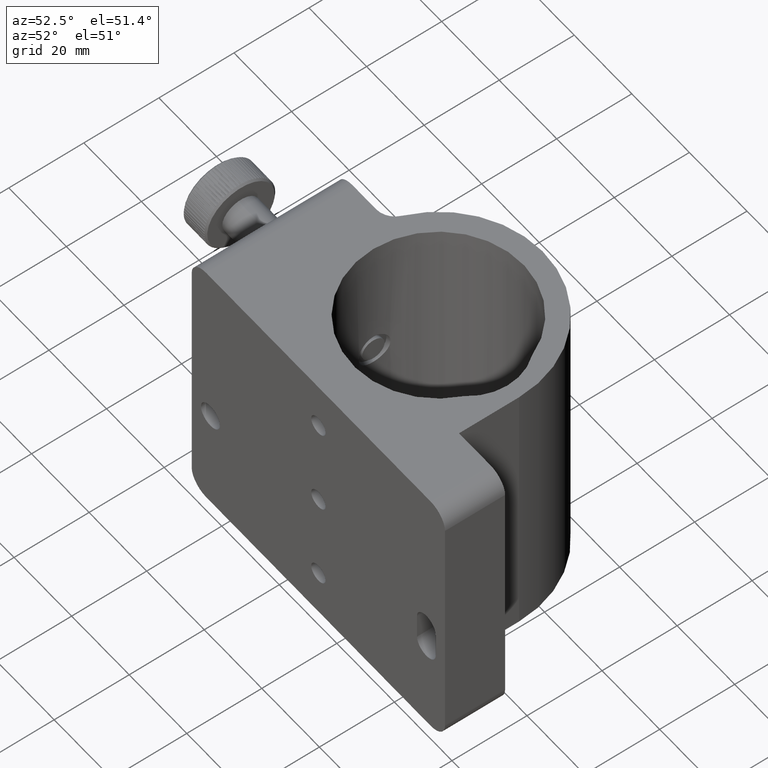
[diagram: clean part render]
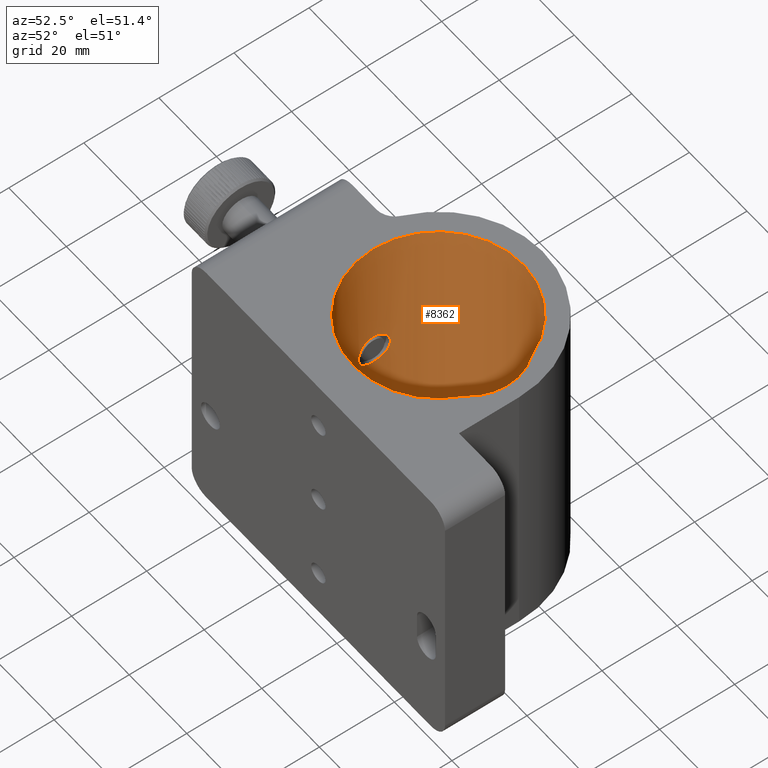
[diagram: same view with one face highlighted and labeled with its STEP entity id]
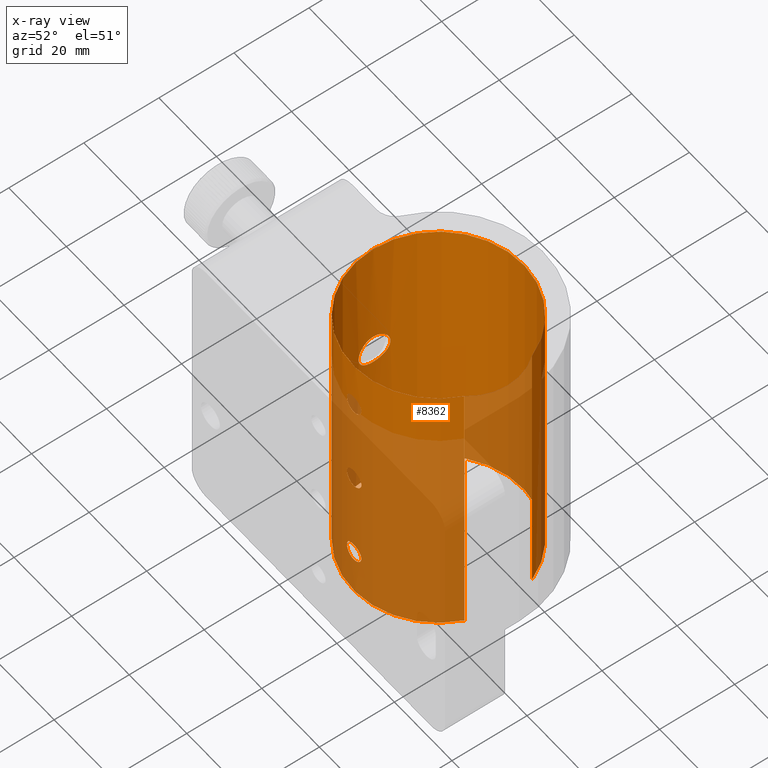
[diagram: x-ray of the same camera — body ghosted, the highlighted face saturated]
A machine part, auxiliary view. The second image highlights one B-rep face of the part: STEP entity #8362.
The next image is the same camera in x-ray: the body ghosted, the highlighted face saturated — about 47% of this face is hidden behind the body in this view.
In plain terms, the highlighted cylindrical surface (partial cylindrical patch) has radius 22.6 mm, axis along (-0, -0, 1).
Its self-contained STEP definition (entity closure, byte-faithful):
#19 = CARTESIAN_POINT ( 'NONE',  ( -50.22097292215434500, 15.63354510714959700, 0.6216507151981876000 ) ) ;
#49 = CARTESIAN_POINT ( 'NONE',  ( -50.36907623515099900, 13.32161828957122700, 8.249999999999989300 ) ) ;
#50 = CARTESIAN_POINT ( 'NONE',  ( -26.24470042069551200, -9.508806134782698600, -26.98820591003821100 ) ) ;
#51 = CARTESIAN_POINT ( 'NONE',  ( -25.78231026818668100, -9.472553143336444500, -1.526362338024773300 ) ) ;
#83 = CARTESIAN_POINT ( 'NONE',  ( -50.36907623515101300, 13.31784632110290000, -0.2499999999999870400 ) ) ;
#86 = CARTESIAN_POINT ( 'NONE',  ( -29.29726443446784900, -9.508552107109819600, -26.98535662105515700 ) ) ;
#106 = CARTESIAN_POINT ( 'NONE',  ( -50.00663148955531100, 9.007418774475031100, 5.370020856989415700 ) ) ;
#136 = CARTESIAN_POINT ( 'NONE',  ( -50.11556625229833600, 16.41927870882249600, 1.407634021790303200 ) ) ;
#147 = FACE_OUTER_BOUND ( 'NONE', #5758, .T. ) ;
#162 = CARTESIAN_POINT ( 'NONE',  ( -27.76907623515101200, -9.559863788454801900, 2.499999999999996900 ) ) ;
#259 = CIRCLE ( 'NONE', #7821, 22.59999999999999800 ) ;
#275 = CARTESIAN_POINT ( 'NONE',  ( -27.11942522369375700, -9.551093621070721800, -22.58035598820120500 ) ) ;
#402 = ORIENTED_EDGE ( 'NONE', *, *, #3275, .T. ) ;
#426 = CARTESIAN_POINT ( 'NONE',  ( -27.76907623515101200, -9.559863788454798300, 22.50000000000000400 ) ) ;
#435 = CARTESIAN_POINT ( 'NONE',  ( -27.76907623515101200, -9.559863788454801900, 2.499999999999996900 ) ) ;
#452 = DIRECTION ( 'NONE',  ( 1.000000000000000000, 0.0000000000000000000, 0.0000000000000000000 ) ) ;
#471 = EDGE_CURVE ( 'NONE', #9157, #6496, #3083, .T. ) ;
#543 = CARTESIAN_POINT ( 'NONE',  ( -29.42034124769478600, -9.499755083912825500, 26.88411141106677200 ) ) ;
#574 = CARTESIAN_POINT ( 'NONE',  ( -50.06692739729871300, 9.353658175052336400, 1.867155379651584300 ) ) ;
#576 = VERTEX_POINT ( 'NONE', #8124 ) ;
#580 = CARTESIAN_POINT ( 'NONE',  ( -25.88440260562517600, -9.481446782610587900, 26.65082874251415700 ) ) ;
#591 = CARTESIAN_POINT ( 'NONE',  ( -29.02425792087840500, -9.525395534908176000, -2.168298646661327200 ) ) ;
#599 = CARTESIAN_POINT ( 'NONE',  ( -28.41721776518688700, -9.551144305440896400, 27.42011759935069300 ) ) ;
#627 = CARTESIAN_POINT ( 'NONE',  ( -29.93977446078792700, -9.455559936797396100, -1.250894685357568000 ) ) ;
#650 = CARTESIAN_POINT ( 'NONE',  ( -25.59955585363810100, -9.455676783567669800, 23.74692286405495500 ) ) ;
#671 = CARTESIAN_POINT ( 'NONE',  ( -26.11773873856712700, -9.499756861068375400, 1.884227878818551100 ) ) ;
#675 = CARTESIAN_POINT ( 'NONE',  ( -25.78103928754392300, -9.472437282327742700, 26.52454010670438600 ) ) ;
#695 = CARTESIAN_POINT ( 'NONE',  ( -50.14233858672911700, 9.840725430841791500, 1.188773494535326300 ) ) ;
#732 = CARTESIAN_POINT ( 'NONE',  ( -50.36907623515101300, 13.04013621154531000, -0.2499999999999861200 ) ) ;
#737 = CARTESIAN_POINT ( 'NONE',  ( -30.18974714003132200, -9.429874182894032200, -25.64568218764448600 ) ) ;
#749 = ORIENTED_EDGE ( 'NONE', *, *, #5913, .T. ) ;
#766 = CARTESIAN_POINT ( 'NONE',  ( -50.19451975645319000, 15.85054537855318900, 7.200092809467613500 ) ) ;
#767 = CARTESIAN_POINT ( 'NONE',  ( -26.11616881162265400, -9.499634240705788100, -26.88267205442438600 ) ) ;
#768 = CARTESIAN_POINT ( 'NONE',  ( -25.88574964340851600, -9.481551912122558400, -1.652161603506530500 ) ) ;
#769 = CARTESIAN_POINT ( 'NONE',  ( -30.26895220466359500, -9.421177644782382300, -24.83290917703401100 ) ) ;
#787 = CARTESIAN_POINT ( 'NONE',  ( -50.29164099981525700, 14.92708686129491200, 7.818309000118829600 ) ) ;
#790 = CARTESIAN_POINT ( 'NONE',  ( -28.87897424218244400, -9.533094851773857000, -27.24602396402951500 ) ) ;
#812 = CARTESIAN_POINT ( 'NONE',  ( -49.97112828536926800, 17.26292899523515300, 4.555740068275376600 ) ) ;
#819 = AXIS2_PLACEMENT_3D ( 'NONE', #5537, #7575, #452 ) ;
#850 = CARTESIAN_POINT ( 'NONE',  ( -50.14204275175760700, 16.24158682961148900, 6.808862334699219900 ) ) ;
#851 = CARTESIAN_POINT ( 'NONE',  ( -27.11942522369375700, -9.551093621070721800, 2.419644011798799200 ) ) ;
#852 = CARTESIAN_POINT ( 'NONE',  ( -30.25261264772181500, -9.423013079876243500, -24.67046143328015600 ) ) ;
#857 = ORIENTED_EDGE ( 'NONE', *, *, #8978, .T. ) ;
#902 = CARTESIAN_POINT ( 'NONE',  ( -26.66080214093184600, -9.533181804716015500, -22.75309574417100900 ) ) ;
#903 = CARTESIAN_POINT ( 'NONE',  ( -27.44004794668180800, -9.558037435281885800, 2.483639258408565800 ) ) ;
#929 = CARTESIAN_POINT ( 'NONE',  ( -25.26901683641301600, -9.421157228645944000, -24.83771472553120000 ) ) ;
#982 = CARTESIAN_POINT ( 'NONE',  ( -29.02126465178828600, -9.525562586994331200, 2.170028545115327800 ) ) ;
#1242 = LINE ( 'NONE', #8828, #4330 ) ;
#1265 = CARTESIAN_POINT ( 'NONE',  ( -29.65094069846107400, -9.481674592527513200, 1.653825290861745500 ) ) ;
#1289 = CARTESIAN_POINT ( 'NONE',  ( -25.78231026818668100, -9.472553143336444500, 23.47363766197522500 ) ) ;
#1300 = CARTESIAN_POINT ( 'NONE',  ( -29.29726443446784900, -9.508552107109821300, -1.985356621055161400 ) ) ;
#1330 = CARTESIAN_POINT ( 'NONE',  ( -30.01490113510993400, -9.448088751833379800, 1.110451582658048800 ) ) ;
#1336 = CARTESIAN_POINT ( 'NONE',  ( -30.18882895895051600, -9.429973400045874100, 25.64911134267219600 ) ) ;
#1343 = CARTESIAN_POINT ( 'NONE',  ( -25.52181815613814200, -9.447945097838248400, 1.107559375173965900 ) ) ;
#1350 = CARTESIAN_POINT ( 'NONE',  ( -26.11616881162265400, -9.499634240705788100, 23.11732794557562100 ) ) ;
#1355 = CARTESIAN_POINT ( 'NONE',  ( -50.36907623515101300, 13.04013621154531000, -0.2499999999999861200 ) ) ;
#1366 = FACE_BOUND ( 'NONE', #2649, .T. ) ;
#1380 = CARTESIAN_POINT ( 'NONE',  ( -26.66080214093184600, -9.533181804716015500, 27.24690425582899800 ) ) ;
#1414 = CARTESIAN_POINT ( 'NONE',  ( -25.39646459288247700, -9.435065319166415800, 0.8047177382139443200 ) ) ;
#1468 = CARTESIAN_POINT ( 'NONE',  ( -50.32853071867609200, 11.66294879919170500, 8.030192045510299100 ) ) ;
#1470 = CARTESIAN_POINT ( 'NONE',  ( -25.59955585363810100, -9.455676783567673400, -1.253077135945048800 ) ) ;
#1505 = CARTESIAN_POINT ( 'NONE',  ( -50.26959574886973300, 15.17097311216968200, 7.687693063780742800 ) ) ;
#1506 = CARTESIAN_POINT ( 'NONE',  ( -26.65993693079253600, -9.533139164316816400, -27.24647746854360300 ) ) ;
#1538 = CARTESIAN_POINT ( 'NONE',  ( -49.96589571976228000, 8.790288591752572600, 3.717037351233735400 ) ) ;
#1539 = CARTESIAN_POINT ( 'NONE',  ( -27.44123041101581300, -9.558051411166374600, -27.48376386526176800 ) ) ;
#1541 = CARTESIAN_POINT ( 'NONE',  ( -29.29452156692128300, -9.508738586035043700, -23.01253521863752400 ) ) ;
#1627 = CARTESIAN_POINT ( 'NONE',  ( -25.39646459288248100, -9.435065319166415800, -24.19528226178605800 ) ) ;
#1654 = CARTESIAN_POINT ( 'NONE',  ( -27.76907623515101200, -9.559863788454798300, -22.50000000000000400 ) ) ;
#1666 = VERTEX_POINT ( 'NONE', #5889 ) ;
#1694 = DIRECTION ( 'NONE',  ( -0.0000000000000000000, -0.0000000000000000000, 1.000000000000000000 ) ) ;
#1706 = CARTESIAN_POINT ( 'NONE',  ( -27.60585124674958400, -9.559863788454800100, -22.50000000000000400 ) ) ;
#1895 = VERTEX_POINT ( 'NONE', #5932 ) ;
#1935 = CARTESIAN_POINT ( 'NONE',  ( -29.02126465178828600, -9.525562586994334800, 27.17002854511533300 ) ) ;
#1940 = VERTEX_POINT ( 'NONE', #7384 ) ;
#1950 = EDGE_LOOP ( 'NONE', ( #4803, #402 ) ) ;
#1976 = CARTESIAN_POINT ( 'NONE',  ( -28.09963190036503300, -9.559863788454801900, 22.50000000000000700 ) ) ;
#2019 = CARTESIAN_POINT ( 'NONE',  ( -26.51638142674551100, -9.525529705478172500, 22.83033641285069100 ) ) ;
#2030 = CARTESIAN_POINT ( 'NONE',  ( -30.18882895895050600, -9.429973400045870600, 0.6491113426721856200 ) ) ;
#2061 = CARTESIAN_POINT ( 'NONE',  ( -28.87897424218245100, -9.533094851773857000, -2.246023964029513200 ) ) ;
#2070 = CARTESIAN_POINT ( 'NONE',  ( -30.01645871992888100, -9.447932593057917200, 23.89269700043630700 ) ) ;
#2079 = CARTESIAN_POINT ( 'NONE',  ( -50.36907623515101300, 13.04013621154531000, -0.2499999999999861200 ) ) ;
#2111 = DIRECTION ( 'NONE',  ( 0.0000000000000000000, 0.0000000000000000000, 1.000000000000000000 ) ) ;
#2118 = CARTESIAN_POINT ( 'NONE',  ( -50.36396140664233900, 12.48610530191366600, -0.2230591364581968300 ) ) ;
#2125 = CARTESIAN_POINT ( 'NONE',  ( -27.11942522369375700, -9.551093621070721800, 27.41964401179880200 ) ) ;
#2145 = CARTESIAN_POINT ( 'NONE',  ( -50.00684368748702000, 17.07167393183401000, 5.373236867230891900 ) ) ;
#2156 = VERTEX_POINT ( 'NONE', #3532 ) ;
#2181 = CARTESIAN_POINT ( 'NONE',  ( -30.01645871992888100, -9.447932593057917200, -26.10730299956370700 ) ) ;
#2207 = CARTESIAN_POINT ( 'NONE',  ( -49.97122065302290400, 17.26243990114780400, 3.441405973830545600 ) ) ;
#2209 = CARTESIAN_POINT ( 'NONE',  ( -25.26913596693003300, -9.421170488175523200, -0.1641102155710664500 ) ) ;
#2226 = ORIENTED_EDGE ( 'NONE', *, *, #3314, .T. ) ;
#2236 = CARTESIAN_POINT ( 'NONE',  ( -50.22043103417064500, 10.44178196834628000, 7.374840960200384800 ) ) ;
#2241 = CARTESIAN_POINT ( 'NONE',  ( -28.42804102355759400, -9.552258577490762900, -27.43346549999564100 ) ) ;
#2260 = CARTESIAN_POINT ( 'NONE',  ( -50.34382352215095600, 14.14235764440779900, 8.113945907594397200 ) ) ;
#2261 = CARTESIAN_POINT ( 'NONE',  ( -26.96265772582733400, -9.545979886154983200, -27.37203292577634200 ) ) ;
#2347 = CARTESIAN_POINT ( 'NONE',  ( -26.24391761360255200, -9.508750143754179300, 1.987560994004821300 ) ) ;
#2488 = VERTEX_POINT ( 'NONE', #6046 ) ;
#2649 = EDGE_LOOP ( 'NONE', ( #8397, #7564 ) ) ;
#2652 = CARTESIAN_POINT ( 'NONE',  ( -29.42293614079403600, -9.499563976570675200, 23.11816708704219900 ) ) ;
#2667 = CARTESIAN_POINT ( 'NONE',  ( -29.65320071307530400, -9.481484780500000700, -1.651248815736536800 ) ) ;
#2676 = EDGE_CURVE ( 'NONE', #1940, #1666, #5035, .T. ) ;
#2685 = CARTESIAN_POINT ( 'NONE',  ( -25.88574964340851600, -9.481551912122558400, 23.34783839649346900 ) ) ;
#2702 = CARTESIAN_POINT ( 'NONE',  ( -30.14059651580489400, -9.435180984063999100, 25.80791321139750800 ) ) ;
#2709 = CARTESIAN_POINT ( 'NONE',  ( -50.22092805190001000, 10.44619979519260200, 0.6219071235128378300 ) ) ;
#2730 = CARTESIAN_POINT ( 'NONE',  ( -30.25308141704901700, -9.422960926032368800, -0.3259929040322008300 ) ) ;
#2771 = CARTESIAN_POINT ( 'NONE',  ( -29.65094069846108500, -9.481674592527513200, 26.65382529086175400 ) ) ;
#2805 = CARTESIAN_POINT ( 'NONE',  ( -50.32888395147470800, 11.66869567097353600, -0.03216109776204256100 ) ) ;
#2837 = CARTESIAN_POINT ( 'NONE',  ( -49.96584598488013300, 17.29024358542804100, 3.723754555508199400 ) ) ;
#2872 = EDGE_LOOP ( 'NONE', ( #857, #4492 ) ) ;
#2874 = CARTESIAN_POINT ( 'NONE',  ( -50.14188132446391700, 16.24284847436496200, 1.192284453611577300 ) ) ;
#2876 = CARTESIAN_POINT ( 'NONE',  ( -26.65993693079253600, -9.533139164316816400, -2.246477468543602200 ) ) ;
#2877 = CARTESIAN_POINT ( 'NONE',  ( -30.18882895895051600, -9.429973400045874100, -24.35088865732781800 ) ) ;
#2893 = CARTESIAN_POINT ( 'NONE',  ( -49.99167980119049300, 8.926871788946082000, 2.895307847369955800 ) ) ;
#2925 = CARTESIAN_POINT ( 'NONE',  ( -49.97129993432653800, 8.818250818105513000, 3.438775724898977000 ) ) ;
#2928 = CARTESIAN_POINT ( 'NONE',  ( -30.01490113510993400, -9.448088751833379800, -23.88954841734196000 ) ) ;
#2958 = CARTESIAN_POINT ( 'NONE',  ( -50.11529547124418100, 9.659175434833342100, 6.590154979590638900 ) ) ;
#2959 = CARTESIAN_POINT ( 'NONE',  ( -25.39728554717419600, -9.435151042766838400, -25.80691899925062700 ) ) ;
#2984 = CARTESIAN_POINT ( 'NONE',  ( -28.09963190036503300, -9.559863788454801900, -27.49999999999999600 ) ) ;
#3005 = CARTESIAN_POINT ( 'NONE',  ( -26.51638142674551100, -9.525529705478172500, -27.16966358714931200 ) ) ;
#3083 = B_SPLINE_CURVE_WITH_KNOTS ( 'NONE', 3,
 ( #7452, #8859, #5487, #3795, #4503, #5225, #982, #6986, #8329, #1265, #6231, #3442, #1330, #4132, #2030, #7712, #7618, #4857, #2730, #9111, #6305, #8398, #627, #5520, #2667, #5569, #1300, #591, #2061, #7013, #5545, #8361 ),
 .UNSPECIFIED., .F., .F.,
 ( 4, 2, 2, 2, 2, 2, 2, 2, 2, 2, 2, 2, 2, 2, 2, 4 ),
 ( 0.007822122090091528800, 0.008310889103474607500, 0.008799656116857684400, 0.009288423130240763100, 0.009777190143623841800, 0.01026595715700692100, 0.01075472417038999700, 0.01124349118377307400, 0.01173225819715615300, 0.01222102521053923200, 0.01270979222392230900, 0.01319855923730538900, 0.01368732625068846600, 0.01417609326407154300, 0.01466486027745462200, 0.01564239430422076700 ),
 .UNSPECIFIED. ) ;
#3127 = B_SPLINE_CURVE_WITH_KNOTS ( 'NONE', 3,
 ( #3550, #4120, #4331, #4277, #7874, #5022, #5773, #1541, #8655, #3691, #6412, #5083, #2928, #6494, #2877, #852, #769, #3581, #4391, #737, #6468, #2181, #7157, #6442, #8543, #3609, #86, #5686, #790, #2241, #2984, #7189 ),
 .UNSPECIFIED., .F., .F.,
 ( 4, 2, 2, 2, 2, 2, 2, 2, 2, 2, 2, 2, 2, 2, 2, 4 ),
 ( 0.007822122090091528800, 0.008310889103474605700, 0.008799656116857682700, 0.009288423130240761400, 0.009777190143623838400, 0.01026595715700691500, 0.01075472417038999200, 0.01124349118377306900, 0.01173225819715614800, 0.01222102521053922500, 0.01270979222392230200, 0.01319855923730537900, 0.01368732625068845600, 0.01417609326407153300, 0.01466486027745461000, 0.01564239430422077100 ),
 .UNSPECIFIED. ) ;
#3154 = CARTESIAN_POINT ( 'NONE',  ( -25.60008197307929100, -9.455723854546551600, -23.74621479786164000 ) ) ;
#3275 = EDGE_CURVE ( 'NONE', #2488, #4095, #6715, .T. ) ;
#3314 = EDGE_CURVE ( 'NONE', #6599, #1895, #259, .T. ) ;
#3351 = CARTESIAN_POINT ( 'NONE',  ( -28.87897424218244400, -9.533094851773857000, 22.75397603597049200 ) ) ;
#3388 = CARTESIAN_POINT ( 'NONE',  ( -30.26895220466359500, -9.421177644782382300, 25.16709082296600600 ) ) ;
#3395 = CARTESIAN_POINT ( 'NONE',  ( -50.11564600530250100, 9.661511303304148900, 1.406924563861152300 ) ) ;
#3405 = CARTESIAN_POINT ( 'NONE',  ( -25.39728554717419600, -9.435151042766838400, 24.19308100074937700 ) ) ;
#3422 = CARTESIAN_POINT ( 'NONE',  ( -30.25308141704901400, -9.422960926032363500, 24.67400709596780600 ) ) ;
#3430 = CARTESIAN_POINT ( 'NONE',  ( -25.28530675225657700, -9.422987391640825500, 25.32806833592375600 ) ) ;
#3442 = CARTESIAN_POINT ( 'NONE',  ( -29.93803589779811200, -9.455728318332166500, 1.253902910496153200 ) ) ;
#3449 = CARTESIAN_POINT ( 'NONE',  ( -30.01490113510993400, -9.448088751833379800, 26.11045158265805100 ) ) ;
#3472 = VECTOR ( 'NONE', #7464, 1000.000000000000000 ) ;
#3490 = CARTESIAN_POINT ( 'NONE',  ( -25.26901683641301600, -9.421157228645944000, 25.16228527446880400 ) ) ;
#3521 = CARTESIAN_POINT ( 'NONE',  ( -50.29195239233683200, 11.15710064048119900, 0.1798757464269998000 ) ) ;
#3529 = CARTESIAN_POINT ( 'NONE',  ( -25.60008197307929100, -9.455723854546551600, 26.25378520213836700 ) ) ;
#3532 = CARTESIAN_POINT ( 'NONE',  ( -27.76907623515101200, -9.559863788454798300, -27.50000000000000000 ) ) ;
#3547 = CARTESIAN_POINT ( 'NONE',  ( -50.04425902054154600, 16.85955885279504300, 2.115243467221231500 ) ) ;
#3550 = CARTESIAN_POINT ( 'NONE',  ( -27.76907623515101200, -9.559863788454798300, -22.50000000000000400 ) ) ;
#3577 = CARTESIAN_POINT ( 'NONE',  ( -50.36907623515100600, 13.04013621154531700, 8.249999999999992900 ) ) ;
#3579 = CARTESIAN_POINT ( 'NONE',  ( -26.24470042069551600, -9.508806134782698600, -1.988205910038204800 ) ) ;
#3581 = CARTESIAN_POINT ( 'NONE',  ( -30.26919887262421900, -9.421150190016796000, -25.16335851266422500 ) ) ;
#3605 = CARTESIAN_POINT ( 'NONE',  ( -50.04417281246838900, 9.220221802671900900, 5.883619118802419800 ) ) ;
#3607 = CARTESIAN_POINT ( 'NONE',  ( -26.51638142674550700, -9.525529705478172500, -2.169663587149308600 ) ) ;
#3609 = CARTESIAN_POINT ( 'NONE',  ( -29.42293614079403600, -9.499563976570675200, -26.88183291295780100 ) ) ;
#3638 = CARTESIAN_POINT ( 'NONE',  ( -50.06641584878335000, 9.350548690487295600, 6.127614278109627200 ) ) ;
#3655 = B_SPLINE_CURVE_WITH_KNOTS ( 'NONE', 3,
 ( #3656, #49, #6491, #2260, #5802, #787, #1505, #7213, #766, #850, #4327, #6409, #8630, #2145, #5713, #812, #7103, #2837, #2207, #4354, #7851, #3547, #5052, #136, #2874, #7784, #19, #4991, #7186, #8596, #4298, #4961, #83, #732 ),
 .UNSPECIFIED., .F., .F.,
 ( 4, 2, 2, 2, 2, 2, 2, 2, 2, 2, 2, 2, 2, 2, 2, 2, 4 ),
 ( 7.152448122690996000E-018, 0.0008323199777097470200, 0.001664639955419486900, 0.002496959933129226600, 0.003329279910838971200, 0.004161599888548714800, 0.004993919866258459400, 0.005826239843968203900, 0.006658559821677948400, 0.007490879799387693000, 0.008323199777097436600, 0.009155519754807181200, 0.009987839732516925700, 0.01082015971022667000, 0.01165247968793641100, 0.01248479966564615100, 0.01331711964335589000 ),
 .UNSPECIFIED. ) ;
#3656 = CARTESIAN_POINT ( 'NONE',  ( -50.36907623515100600, 13.04013621154531700, 8.249999999999992900 ) ) ;
#3657 = CARTESIAN_POINT ( 'NONE',  ( -25.28502087010477000, -9.422956014323567300, -25.32642034115640700 ) ) ;
#3691 = CARTESIAN_POINT ( 'NONE',  ( -29.65094069846108500, -9.481674592527513200, -23.34617470913826800 ) ) ;
#3727 = CARTESIAN_POINT ( 'NONE',  ( -26.66080214093184600, -9.533181804716015500, 2.246904255828990700 ) ) ;
#3795 = CARTESIAN_POINT ( 'NONE',  ( -28.41721776518689400, -9.551144305440900000, 2.420117599350692500 ) ) ;
#3934 = CARTESIAN_POINT ( 'NONE',  ( -27.76907623515101200, -9.559863788454798300, -22.50000000000000400 ) ) ;
#3961 = CARTESIAN_POINT ( 'NONE',  ( -27.76907623515101200, 13.04013621154520000, -38.00000000000001400 ) ) ;
#4016 = CARTESIAN_POINT ( 'NONE',  ( -27.93226262200940700, -9.559863788454801900, 27.49999999999999600 ) ) ;
#4082 = CARTESIAN_POINT ( 'NONE',  ( -30.14176078325047900, -9.435057550214899900, 24.19550264081279800 ) ) ;
#4090 = CARTESIAN_POINT ( 'NONE',  ( -50.34376176965449200, 11.93589023352011600, -0.1136139268124684000 ) ) ;
#4095 = VERTEX_POINT ( 'NONE', #6655 ) ;
#4096 = CARTESIAN_POINT ( 'NONE',  ( -25.26913596693003300, -9.421170488175523200, 24.83588978442894300 ) ) ;
#4120 = CARTESIAN_POINT ( 'NONE',  ( -27.93226262200940700, -9.559863788454801900, -22.50000000000000400 ) ) ;
#4132 = CARTESIAN_POINT ( 'NONE',  ( -30.14059651580488000, -9.435180984063997300, 0.8079132113975043800 ) ) ;
#4175 = CARTESIAN_POINT ( 'NONE',  ( -27.76907623515101200, 13.04013621154520000, 38.00000000000000000 ) ) ;
#4181 = CARTESIAN_POINT ( 'NONE',  ( -25.60008197307929500, -9.455723854546551600, 1.253785202138362600 ) ) ;
#4186 = CARTESIAN_POINT ( 'NONE',  ( -25.39646459288248100, -9.435065319166415800, 25.80471773821394500 ) ) ;
#4203 = CARTESIAN_POINT ( 'NONE',  ( -50.26958183268929000, 10.90907919952430300, 0.3123701886211319700 ) ) ;
#4234 = CARTESIAN_POINT ( 'NONE',  ( -50.34357293910440500, 11.93222952089730500, 8.112579457969653500 ) ) ;
#4274 = CARTESIAN_POINT ( 'NONE',  ( -49.97113082668436600, 8.817365720185947000, 4.554733450173970700 ) ) ;
#4277 = CARTESIAN_POINT ( 'NONE',  ( -28.41721776518688700, -9.551144305440896400, -22.57988240064930400 ) ) ;
#4298 = CARTESIAN_POINT ( 'NONE',  ( -50.34365682664406400, 14.14601294647233800, -0.1130359409598165100 ) ) ;
#4300 = CARTESIAN_POINT ( 'NONE',  ( -25.39728554717419600, -9.435151042766838400, -0.8069189992506230500 ) ) ;
#4327 = CARTESIAN_POINT ( 'NONE',  ( -50.11588020099895900, 16.41727813205977100, 6.595277813126819500 ) ) ;
#4330 = VECTOR ( 'NONE', #1694, 1000.000000000000000 ) ;
#4331 = CARTESIAN_POINT ( 'NONE',  ( -28.09453676405790300, -9.558096424752633900, -22.51582366129780200 ) ) ;
#4354 = CARTESIAN_POINT ( 'NONE',  ( -49.99164118566712700, 17.15361068203415900, 2.895824509446301800 ) ) ;
#4391 = CARTESIAN_POINT ( 'NONE',  ( -30.25308141704901400, -9.422960926032363500, -25.32599290403220500 ) ) ;
#4413 = CARTESIAN_POINT ( 'NONE',  ( -27.60585124674958400, -9.559863788454800100, 2.499999999999996900 ) ) ;
#4442 = CARTESIAN_POINT ( 'NONE',  ( -26.51458462014150200, -9.525426832016572500, -22.83141559683653600 ) ) ;
#4448 = ORIENTED_EDGE ( 'NONE', *, *, #8771, .F. ) ;
#4492 = ORIENTED_EDGE ( 'NONE', *, *, #8969, .T. ) ;
#4503 = CARTESIAN_POINT ( 'NONE',  ( -28.57498735658396100, -9.545991807427585100, 2.372133581297432700 ) ) ;
#4509 = CARTESIAN_POINT ( 'NONE',  ( -25.34920354077123900, -9.429960561703600400, -24.35118891795171000 ) ) ;
#4721 = B_SPLINE_CURVE_WITH_KNOTS ( 'NONE', 3,
 ( #2079, #4806, #2118, #4090, #2805, #3521, #4203, #2709, #4925, #695, #3395, #574, #5769, #6437, #2893, #2925, #1538, #8538, #4274, #6465, #106, #3605, #3638, #2958, #7815, #5080, #2236, #8511, #7126, #1468, #4234, #7153, #8568, #3577 ),
 .UNSPECIFIED., .F., .F.,
 ( 4, 2, 2, 2, 2, 2, 2, 2, 2, 2, 2, 2, 2, 2, 2, 2, 4 ),
 ( 0.01331711964335589000, 0.01414922724470195500, 0.01498133484604802100, 0.01581344244739408400, 0.01664555004874015300, 0.01747765765008621500, 0.01830976525143228300, 0.01914187285277834500, 0.01997398045412441400, 0.02080608805547047900, 0.02163819565681654500, 0.02247030325816261300, 0.02330241085950868200, 0.02413451846085474400, 0.02496662606220081300, 0.02579873366354688100, 0.02663084126489294700 ),
 .UNSPECIFIED. ) ;
#4730 = CARTESIAN_POINT ( 'NONE',  ( -29.75652312106392100, -9.472490508596989000, 26.52535681163984500 ) ) ;
#4803 = ORIENTED_EDGE ( 'NONE', *, *, #5385, .T. ) ;
#4806 = CARTESIAN_POINT ( 'NONE',  ( -50.36907623515102700, 12.76249696303252400, -0.2499999999999870400 ) ) ;
#4813 = CARTESIAN_POINT ( 'NONE',  ( -27.44123041101581300, -9.558051411166374600, 22.51623613473824300 ) ) ;
#4848 = CARTESIAN_POINT ( 'NONE',  ( -27.44004794668180800, -9.558037435281887500, 27.48363925840856600 ) ) ;
#4857 = CARTESIAN_POINT ( 'NONE',  ( -30.26919887262423400, -9.421150190016796000, -0.1633585126642236000 ) ) ;
#4873 = CARTESIAN_POINT ( 'NONE',  ( -25.34920354077123900, -9.429960561703600400, 25.64881108204829000 ) ) ;
#4892 = CARTESIAN_POINT ( 'NONE',  ( -25.26901683641301600, -9.421157228645944000, 0.1622852744688070300 ) ) ;
#4925 = CARTESIAN_POINT ( 'NONE',  ( -50.19489365544482200, 10.23267995580954800, 0.7972803461996327300 ) ) ;
#4928 = CARTESIAN_POINT ( 'NONE',  ( -25.78103928754392300, -9.472437282327742700, 1.524540106704388700 ) ) ;
#4955 = B_SPLINE_CURVE_WITH_KNOTS ( 'NONE', 3,
 ( #426, #9168, #4813, #7005, #7736, #6347, #2019, #8482, #1350, #2685, #1289, #650, #9071, #3405, #8347, #7666, #4096, #3490, #3430, #4873, #4186, #8446, #3529, #675, #580, #5631, #5534, #6220, #1380, #5507, #2125, #4848, #8388, #9101 ),
 .UNSPECIFIED., .F., .F.,
 ( 4, 2, 2, 2, 2, 2, 2, 2, 2, 2, 2, 2, 2, 2, 2, 2, 4 ),
 ( 0.0000000000000000000, 0.0004888826306307205500, 0.0009777652612614411000, 0.001466647891892161600, 0.001955530522522882200, 0.002444413153153603000, 0.002933295783784323300, 0.003422178414415043600, 0.003911061045045764400, 0.004399943675676485200, 0.004888826306307205900, 0.005377708936937925800, 0.005866591567568646600, 0.006355474198199367400, 0.006844356828830087300, 0.007333239459460808000, 0.007822122090091528800 ),
 .UNSPECIFIED. ) ;
#4961 = CARTESIAN_POINT ( 'NONE',  ( -50.36379419997998500, 13.59993289294266800, -0.2221624412114429100 ) ) ;
#4991 = CARTESIAN_POINT ( 'NONE',  ( -50.26932235700817800, 15.17376199867917200, 0.3139920523148914700 ) ) ;
#4993 = CARTESIAN_POINT ( 'NONE',  ( -25.34924307320139600, -9.429965053754648000, -0.6492216601936290400 ) ) ;
#5022 = CARTESIAN_POINT ( 'NONE',  ( -28.87585960715727000, -9.533248607584774000, -22.75243664591657100 ) ) ;
#5035 = CIRCLE ( 'NONE', #819, 22.59999999999999800 ) ;
#5052 = CARTESIAN_POINT ( 'NONE',  ( -50.06691033622767200, 16.72670840048084200, 1.867360584240545200 ) ) ;
#5053 = CARTESIAN_POINT ( 'NONE',  ( -27.76907623515101200, -9.559863788454798300, -27.50000000000000000 ) ) ;
#5080 = CARTESIAN_POINT ( 'NONE',  ( -50.19432822203103900, 10.22821786426427300, 7.198744112024815700 ) ) ;
#5083 = CARTESIAN_POINT ( 'NONE',  ( -29.93803589779812000, -9.455728318332168300, -23.74609708950385600 ) ) ;
#5108 = CARTESIAN_POINT ( 'NONE',  ( -26.51458462014150200, -9.525426832016572500, 2.168584403163468900 ) ) ;
#5140 = CARTESIAN_POINT ( 'NONE',  ( -25.78103928754392300, -9.472437282327742700, -23.47545989329561100 ) ) ;
#5225 = CARTESIAN_POINT ( 'NONE',  ( -28.87585960715727400, -9.533248607584766900, 2.247563354083429700 ) ) ;
#5234 = CARTESIAN_POINT ( 'NONE',  ( -27.44004794668180800, -9.558037435281887500, -22.51636074159143800 ) ) ;
#5267 = CARTESIAN_POINT ( 'NONE',  ( -25.26913596693003300, -9.421170488175523200, -25.16411021557106800 ) ) ;
#5280 = DIRECTION ( 'NONE',  ( 1.000000000000000000, 0.0000000000000000000, 0.0000000000000000000 ) ) ;
#5349 = LINE ( 'NONE', #8986, #3472 ) ;
#5384 = CARTESIAN_POINT ( 'NONE',  ( -27.76907623515101200, -9.559863788454798300, -2.499999999999996900 ) ) ;
#5385 = EDGE_CURVE ( 'NONE', #4095, #2488, #4955, .T. ) ;
#5462 = CARTESIAN_POINT ( 'NONE',  ( -29.75860188074645800, -9.472306207944894800, 23.47735230399246100 ) ) ;
#5487 = CARTESIAN_POINT ( 'NONE',  ( -28.09453676405790300, -9.558096424752633900, 2.484176338702199800 ) ) ;
#5495 = CARTESIAN_POINT ( 'NONE',  ( -29.29726443446784900, -9.508552107109819600, 23.01464337894483900 ) ) ;
#5507 = CARTESIAN_POINT ( 'NONE',  ( -26.96356656908028200, -9.546012462123069800, 27.37234153962838700 ) ) ;
#5520 = CARTESIAN_POINT ( 'NONE',  ( -29.75860188074645800, -9.472306207944896500, -1.522647696007540100 ) ) ;
#5525 = CARTESIAN_POINT ( 'NONE',  ( -30.26919887262421900, -9.421150190016796000, 24.83664148733577500 ) ) ;
#5534 = CARTESIAN_POINT ( 'NONE',  ( -26.24391761360255200, -9.508750143754179300, 26.98756099400482400 ) ) ;
#5537 = CARTESIAN_POINT ( 'NONE',  ( -27.76907623515101200, 13.04013621154520000, -38.00000000000001400 ) ) ;
#5545 = CARTESIAN_POINT ( 'NONE',  ( -28.09963190036503600, -9.559863788454801900, -2.499999999999996400 ) ) ;
#5569 = CARTESIAN_POINT ( 'NONE',  ( -29.42293614079404300, -9.499563976570677000, -1.881832912957797500 ) ) ;
#5573 = CYLINDRICAL_SURFACE ( 'NONE', #6536, 22.59999999999999800 ) ;
#5590 = CARTESIAN_POINT ( 'NONE',  ( -25.34920354077123900, -9.429960561703600400, 0.6488110820482836400 ) ) ;
#5623 = CARTESIAN_POINT ( 'NONE',  ( -27.44123041101581300, -9.558051411166374600, -2.483763865261762400 ) ) ;
#5631 = CARTESIAN_POINT ( 'NONE',  ( -26.11773873856712700, -9.499756861068375400, 26.88422787881855300 ) ) ;
#5686 = CARTESIAN_POINT ( 'NONE',  ( -29.02425792087841200, -9.525395534908174300, -27.16829864666133400 ) ) ;
#5713 = CARTESIAN_POINT ( 'NONE',  ( -49.99164612277461800, 17.15358752695775400, 5.104691899672188200 ) ) ;
#5714 = CARTESIAN_POINT ( 'NONE',  ( -25.88574964340851600, -9.481551912122558400, -26.65216160350653100 ) ) ;
#5715 = CARTESIAN_POINT ( 'NONE',  ( -26.11616881162265700, -9.499634240705788100, -1.882672054424385800 ) ) ;
#5751 = B_SPLINE_CURVE_WITH_KNOTS ( 'NONE', 3,
 ( #8474, #6374, #5623, #9190, #8441, #2876, #3607, #3579, #5715, #768, #51, #1470, #7730, #4300, #4993, #6439, #2209, #4892, #7155, #5590, #1414, #1343, #4181, #4928, #9158, #671, #2347, #5108, #3727, #5839, #851, #903, #4413, #162 ),
 .UNSPECIFIED., .F., .F.,
 ( 4, 2, 2, 2, 2, 2, 2, 2, 2, 2, 2, 2, 2, 2, 2, 2, 4 ),
 ( 0.0000000000000000000, 0.0004888826306307205500, 0.0009777652612614411000, 0.001466647891892161600, 0.001955530522522882200, 0.002444413153153603000, 0.002933295783784323300, 0.003422178414415043600, 0.003911061045045764400, 0.004399943675676485200, 0.004888826306307205900, 0.005377708936937925800, 0.005866591567568646600, 0.006355474198199367400, 0.006844356828830087300, 0.007333239459460808000, 0.007822122090091528800 ),
 .UNSPECIFIED. ) ;
#5758 = EDGE_LOOP ( 'NONE', ( #2226, #4448, #9174, #7839 ) ) ;
#5769 = CARTESIAN_POINT ( 'NONE',  ( -50.04463117468948500, 9.222874699174630200, 2.110847781890264200 ) ) ;
#5771 = EDGE_LOOP ( 'NONE', ( #749, #7842 ) ) ;
#5773 = CARTESIAN_POINT ( 'NONE',  ( -29.02126465178828600, -9.525562586994334800, -22.82997145488467100 ) ) ;
#5802 = CARTESIAN_POINT ( 'NONE',  ( -50.32883473033741200, 14.41265323218710400, 8.031905678835688200 ) ) ;
#5839 = CARTESIAN_POINT ( 'NONE',  ( -26.96356656908028200, -9.546012462123069800, 2.372341539628385100 ) ) ;
#5889 = CARTESIAN_POINT ( 'NONE',  ( -7.031076235151017400, 4.057076821782710700, -38.00000000000000000 ) ) ;
#5913 = EDGE_CURVE ( 'NONE', #2156, #7118, #6214, .T. ) ;
#5932 = CARTESIAN_POINT ( 'NONE',  ( -7.031076235151017400, 4.057076821782710700, 38.00000000000000000 ) ) ;
#6046 = CARTESIAN_POINT ( 'NONE',  ( -27.76907623515101200, -9.559863788454798300, 27.50000000000000000 ) ) ;
#6179 = CARTESIAN_POINT ( 'NONE',  ( -28.09453676405790300, -9.558096424752633900, 27.48417633870220200 ) ) ;
#6210 = CARTESIAN_POINT ( 'NONE',  ( -28.42804102355759400, -9.552258577490762900, 22.56653450000435900 ) ) ;
#6214 = B_SPLINE_CURVE_WITH_KNOTS ( 'NONE', 3,
 ( #5053, #7964, #1539, #7264, #2261, #1506, #3005, #50, #767, #5714, #7871, #7852, #7214, #2959, #7900, #3657, #5267, #929, #7403, #4509, #1627, #7340, #3154, #5140, #8717, #8776, #6581, #4442, #902, #8019, #275, #5234, #1706, #1654 ),
 .UNSPECIFIED., .F., .F.,
 ( 4, 2, 2, 2, 2, 2, 2, 2, 2, 2, 2, 2, 2, 2, 2, 2, 4 ),
 ( 0.0000000000000000000, 0.0004888826306307205500, 0.0009777652612614411000, 0.001466647891892161600, 0.001955530522522882200, 0.002444413153153603000, 0.002933295783784323300, 0.003422178414415043600, 0.003911061045045764400, 0.004399943675676485200, 0.004888826306307205900, 0.005377708936937925800, 0.005866591567568646600, 0.006355474198199367400, 0.006844356828830087300, 0.007333239459460808000, 0.007822122090091528800 ),
 .UNSPECIFIED. ) ;
#6220 = CARTESIAN_POINT ( 'NONE',  ( -26.51458462014150200, -9.525426832016572500, 27.16858440316347200 ) ) ;
#6231 = CARTESIAN_POINT ( 'NONE',  ( -29.75652312106392500, -9.472490508596990800, 1.525356811639843000 ) ) ;
#6305 = CARTESIAN_POINT ( 'NONE',  ( -30.14176078325047900, -9.435057550214905200, -0.8044973591872002200 ) ) ;
#6347 = CARTESIAN_POINT ( 'NONE',  ( -26.65993693079253600, -9.533139164316816400, 22.75352253145639400 ) ) ;
#6374 = CARTESIAN_POINT ( 'NONE',  ( -27.60375930627199300, -9.559863788454800100, -2.499999999999997300 ) ) ;
#6409 = CARTESIAN_POINT ( 'NONE',  ( -50.06671499154050100, 16.72795954366014500, 6.130848082270021300 ) ) ;
#6412 = CARTESIAN_POINT ( 'NONE',  ( -29.75652312106392100, -9.472490508596989000, -23.47464318836016900 ) ) ;
#6437 = CARTESIAN_POINT ( 'NONE',  ( -50.00685247657744300, 9.008617743960945400, 2.626231314033690800 ) ) ;
#6439 = CARTESIAN_POINT ( 'NONE',  ( -25.28502087010477000, -9.422956014323567300, -0.3264203411564130500 ) ) ;
#6442 = CARTESIAN_POINT ( 'NONE',  ( -29.75860188074645800, -9.472306207944894800, -26.52264769600753500 ) ) ;
#6465 = CARTESIAN_POINT ( 'NONE',  ( -49.99140019002171400, 8.925365652583005600, 5.099173812704050200 ) ) ;
#6468 = CARTESIAN_POINT ( 'NONE',  ( -30.14176078325047900, -9.435057550214899900, -25.80449735918719900 ) ) ;
#6491 = CARTESIAN_POINT ( 'NONE',  ( -50.36382321418194200, 13.59827249646593800, 8.222312980479904000 ) ) ;
#6494 = CARTESIAN_POINT ( 'NONE',  ( -30.14059651580489400, -9.435180984063999100, -24.19208678860249900 ) ) ;
#6496 = VERTEX_POINT ( 'NONE', #5384 ) ;
#6536 = AXIS2_PLACEMENT_3D ( 'NONE', #3961, #8966, #5280 ) ;
#6581 = CARTESIAN_POINT ( 'NONE',  ( -26.24391761360255200, -9.508750143754179300, -23.01243900599518000 ) ) ;
#6599 = VERTEX_POINT ( 'NONE', #7121 ) ;
#6655 = CARTESIAN_POINT ( 'NONE',  ( -27.76907623515101200, -9.559863788454798300, 22.50000000000000400 ) ) ;
#6715 = B_SPLINE_CURVE_WITH_KNOTS ( 'NONE', 3,
 ( #6890, #4016, #6179, #599, #7628, #6962, #1935, #7686, #543, #2771, #4730, #8307, #3449, #2702, #1336, #7652, #3388, #5525, #3422, #7021, #4082, #2070, #9019, #5462, #9088, #2652, #5495, #8369, #3351, #6210, #1976, #6927 ),
 .UNSPECIFIED., .F., .F.,
 ( 4, 2, 2, 2, 2, 2, 2, 2, 2, 2, 2, 2, 2, 2, 2, 4 ),
 ( 0.007822122090091528800, 0.008310889103474605700, 0.008799656116857682700, 0.009288423130240761400, 0.009777190143623838400, 0.01026595715700691500, 0.01075472417038999200, 0.01124349118377306900, 0.01173225819715614800, 0.01222102521053922500, 0.01270979222392230200, 0.01319855923730537900, 0.01368732625068845600, 0.01417609326407153300, 0.01466486027745461000, 0.01564239430422077100 ),
 .UNSPECIFIED. ) ;
#6793 = FACE_BOUND ( 'NONE', #1950, .T. ) ;
#6847 = VERTEX_POINT ( 'NONE', #1355 ) ;
#6890 = CARTESIAN_POINT ( 'NONE',  ( -27.76907623515101200, -9.559863788454798300, 27.50000000000000000 ) ) ;
#6927 = CARTESIAN_POINT ( 'NONE',  ( -27.76907623515101200, -9.559863788454798300, 22.50000000000000400 ) ) ;
#6962 = CARTESIAN_POINT ( 'NONE',  ( -28.87585960715727000, -9.533248607584774000, 27.24756335408342900 ) ) ;
#6986 = CARTESIAN_POINT ( 'NONE',  ( -29.29452156692128300, -9.508738586035045500, 1.987464781362479900 ) ) ;
#7005 = CARTESIAN_POINT ( 'NONE',  ( -27.12151297627743000, -9.551150350787509100, 22.57982900427676800 ) ) ;
#7013 = CARTESIAN_POINT ( 'NONE',  ( -28.42804102355758300, -9.552258577490757600, -2.433465499995642200 ) ) ;
#7021 = CARTESIAN_POINT ( 'NONE',  ( -30.18974714003132200, -9.429874182894032200, 24.35431781235550400 ) ) ;
#7103 = CARTESIAN_POINT ( 'NONE',  ( -49.96588722465418200, 17.29002819938369800, 4.279539490666133300 ) ) ;
#7118 = VERTEX_POINT ( 'NONE', #3934 ) ;
#7121 = CARTESIAN_POINT ( 'NONE',  ( -7.031076235151010300, 22.02319560130768000, 38.00000000000000000 ) ) ;
#7126 = CARTESIAN_POINT ( 'NONE',  ( -50.29151498973346400, 11.15191368518136600, 7.817552721754013900 ) ) ;
#7153 = CARTESIAN_POINT ( 'NONE',  ( -50.36382338048137100, 12.48088661559525500, 8.222322456033676700 ) ) ;
#7155 = CARTESIAN_POINT ( 'NONE',  ( -25.28530675225657700, -9.422987391640825500, 0.3280683359237482300 ) ) ;
#7157 = CARTESIAN_POINT ( 'NONE',  ( -29.93977446078792300, -9.455559936797394400, -26.25089468535756500 ) ) ;
#7186 = CARTESIAN_POINT ( 'NONE',  ( -50.29182084427804300, 14.92490369599875200, 0.1806372187420443900 ) ) ;
#7189 = CARTESIAN_POINT ( 'NONE',  ( -27.76907623515101200, -9.559863788454798300, -27.50000000000000000 ) ) ;
#7213 = CARTESIAN_POINT ( 'NONE',  ( -50.22110045618039500, 15.63251979863464800, 7.379214903954602000 ) ) ;
#7214 = CARTESIAN_POINT ( 'NONE',  ( -25.52198055910401900, -9.447960400976402400, -26.10773208025050000 ) ) ;
#7264 = CARTESIAN_POINT ( 'NONE',  ( -27.12151297627743000, -9.551150350787509100, -27.42017099572322900 ) ) ;
#7340 = CARTESIAN_POINT ( 'NONE',  ( -25.52181815613814900, -9.447945097838248400, -23.89244062482604000 ) ) ;
#7383 = EDGE_CURVE ( 'NONE', #7118, #2156, #3127, .T. ) ;
#7384 = CARTESIAN_POINT ( 'NONE',  ( -7.031076235151010300, 22.02319560130768000, -38.00000000000001400 ) ) ;
#7403 = CARTESIAN_POINT ( 'NONE',  ( -25.28530675225657700, -9.422987391640825500, -24.67193166407625100 ) ) ;
#7452 = CARTESIAN_POINT ( 'NONE',  ( -27.76907623515101200, -9.559863788454801900, 2.499999999999996900 ) ) ;
#7464 = DIRECTION ( 'NONE',  ( -0.0000000000000000000, -0.0000000000000000000, 1.000000000000000000 ) ) ;
#7564 = ORIENTED_EDGE ( 'NONE', *, *, #471, .T. ) ;
#7575 = DIRECTION ( 'NONE',  ( 0.0000000000000000000, 0.0000000000000000000, 1.000000000000000000 ) ) ;
#7618 = CARTESIAN_POINT ( 'NONE',  ( -30.26895220466358800, -9.421177644782378700, 0.1670908229659924000 ) ) ;
#7628 = CARTESIAN_POINT ( 'NONE',  ( -28.57498735658397100, -9.545991807427586900, 27.37213358129743300 ) ) ;
#7652 = CARTESIAN_POINT ( 'NONE',  ( -30.25261264772181500, -9.423013079876243500, 25.32953856671985400 ) ) ;
#7666 = CARTESIAN_POINT ( 'NONE',  ( -25.28502087010477000, -9.422956014323567300, 24.67357965884359300 ) ) ;
#7686 = CARTESIAN_POINT ( 'NONE',  ( -29.29452156692128300, -9.508738586035043700, 26.98746478136248300 ) ) ;
#7712 = CARTESIAN_POINT ( 'NONE',  ( -30.25261264772178300, -9.423013079876236400, 0.3295385667198412700 ) ) ;
#7730 = CARTESIAN_POINT ( 'NONE',  ( -25.52198055910401900, -9.447960400976400700, -1.107732080250498200 ) ) ;
#7736 = CARTESIAN_POINT ( 'NONE',  ( -26.96265772582733400, -9.545979886154983200, 22.62796707422366500 ) ) ;
#7784 = CARTESIAN_POINT ( 'NONE',  ( -50.19491719413782200, 15.84752479972280700, 0.7970011328729227400 ) ) ;
#7788 = FACE_BOUND ( 'NONE', #5771, .T. ) ;
#7815 = CARTESIAN_POINT ( 'NONE',  ( -50.14190062288035700, 9.837708947317995700, 6.807722974818328300 ) ) ;
#7821 = AXIS2_PLACEMENT_3D ( 'NONE', #4175, #2111, #9149 ) ;
#7839 = ORIENTED_EDGE ( 'NONE', *, *, #8187, .T. ) ;
#7842 = ORIENTED_EDGE ( 'NONE', *, *, #7383, .T. ) ;
#7851 = CARTESIAN_POINT ( 'NONE',  ( -50.00658422689836200, 17.07312465090660000, 2.630583792880511100 ) ) ;
#7852 = CARTESIAN_POINT ( 'NONE',  ( -25.59955585363810100, -9.455676783567669800, -26.25307713594504800 ) ) ;
#7871 = CARTESIAN_POINT ( 'NONE',  ( -25.78231026818668100, -9.472553143336444500, -26.52636233802477500 ) ) ;
#7874 = CARTESIAN_POINT ( 'NONE',  ( -28.57498735658397100, -9.545991807427586900, -22.62786641870257800 ) ) ;
#7900 = CARTESIAN_POINT ( 'NONE',  ( -25.34924307320139600, -9.429965053754648000, -25.64922166019363200 ) ) ;
#7964 = CARTESIAN_POINT ( 'NONE',  ( -27.60375930627199300, -9.559863788454800100, -27.49999999999998900 ) ) ;
#8019 = CARTESIAN_POINT ( 'NONE',  ( -26.96356656908028200, -9.546012462123069800, -22.62765846037161300 ) ) ;
#8124 = CARTESIAN_POINT ( 'NONE',  ( -50.36907623515100600, 13.04013621154531700, 8.249999999999992900 ) ) ;
#8187 = EDGE_CURVE ( 'NONE', #1940, #6599, #1242, .T. ) ;
#8307 = CARTESIAN_POINT ( 'NONE',  ( -29.93803589779812000, -9.455728318332168300, 26.25390291049615100 ) ) ;
#8329 = CARTESIAN_POINT ( 'NONE',  ( -29.42034124769478300, -9.499755083912823700, 1.884111411066769800 ) ) ;
#8347 = CARTESIAN_POINT ( 'NONE',  ( -25.34924307320139600, -9.429965053754648000, 24.35077833980637500 ) ) ;
#8361 = CARTESIAN_POINT ( 'NONE',  ( -27.76907623515101200, -9.559863788454798300, -2.499999999999996900 ) ) ;
#8362 = ADVANCED_FACE ( 'NONE', ( #8898, #6793, #1366, #7788, #147 ), #5573, .F. ) ;
#8369 = CARTESIAN_POINT ( 'NONE',  ( -29.02425792087841200, -9.525395534908174300, 22.83170135333867600 ) ) ;
#8388 = CARTESIAN_POINT ( 'NONE',  ( -27.60585124674958400, -9.559863788454800100, 27.50000000000000000 ) ) ;
#8397 = ORIENTED_EDGE ( 'NONE', *, *, #8548, .T. ) ;
#8398 = CARTESIAN_POINT ( 'NONE',  ( -30.01645871992887700, -9.447932593057915400, -1.107302999563704000 ) ) ;
#8441 = CARTESIAN_POINT ( 'NONE',  ( -26.96265772582733800, -9.545979886154983200, -2.372032925776337700 ) ) ;
#8446 = CARTESIAN_POINT ( 'NONE',  ( -25.52181815613814900, -9.447945097838248400, 26.10755937517396700 ) ) ;
#8474 = CARTESIAN_POINT ( 'NONE',  ( -27.76907623515101200, -9.559863788454798300, -2.499999999999996900 ) ) ;
#8482 = CARTESIAN_POINT ( 'NONE',  ( -26.24470042069551200, -9.508806134782698600, 23.01179408996179300 ) ) ;
#8511 = CARTESIAN_POINT ( 'NONE',  ( -50.26942711940309000, 10.90730073496758800, 7.686734206536745400 ) ) ;
#8538 = CARTESIAN_POINT ( 'NONE',  ( -49.96583760547581200, 8.789985073911184400, 4.278366591605752100 ) ) ;
#8543 = CARTESIAN_POINT ( 'NONE',  ( -29.65320071307530700, -9.481484780500000700, -26.65124881573654000 ) ) ;
#8548 = EDGE_CURVE ( 'NONE', #6496, #9157, #5751, .T. ) ;
#8568 = CARTESIAN_POINT ( 'NONE',  ( -50.36907623515102700, 12.75872595702690800, 8.249999999999996400 ) ) ;
#8596 = CARTESIAN_POINT ( 'NONE',  ( -50.32893339051680200, 14.41098205550641100, -0.03245114011391664300 ) ) ;
#8630 = CARTESIAN_POINT ( 'NONE',  ( -50.04425471670888500, 16.85956303621778900, 5.884424213017086700 ) ) ;
#8655 = CARTESIAN_POINT ( 'NONE',  ( -29.42034124769478600, -9.499755083912825500, -23.11588858893324500 ) ) ;
#8717 = CARTESIAN_POINT ( 'NONE',  ( -25.88440260562517600, -9.481446782610587900, -23.34917125748584600 ) ) ;
#8771 = EDGE_CURVE ( 'NONE', #1666, #1895, #5349, .T. ) ;
#8776 = CARTESIAN_POINT ( 'NONE',  ( -26.11773873856712700, -9.499756861068375400, -23.11577212118145000 ) ) ;
#8828 = CARTESIAN_POINT ( 'NONE',  ( -7.031076235151010300, 22.02319560130768000, -38.00000000000001400 ) ) ;
#8859 = CARTESIAN_POINT ( 'NONE',  ( -27.93226262200941100, -9.559863788454800100, 2.499999999999996900 ) ) ;
#8898 = FACE_BOUND ( 'NONE', #2872, .T. ) ;
#8966 = DIRECTION ( 'NONE',  ( -0.0000000000000000000, -0.0000000000000000000, 1.000000000000000000 ) ) ;
#8969 = EDGE_CURVE ( 'NONE', #6847, #576, #4721, .T. ) ;
#8978 = EDGE_CURVE ( 'NONE', #576, #6847, #3655, .T. ) ;
#8986 = CARTESIAN_POINT ( 'NONE',  ( -7.031076235151017400, 4.057076821782710700, -38.00000000000001400 ) ) ;
#9019 = CARTESIAN_POINT ( 'NONE',  ( -29.93977446078792300, -9.455559936797394400, 23.74910531464243500 ) ) ;
#9071 = CARTESIAN_POINT ( 'NONE',  ( -25.52198055910401900, -9.447960400976402400, 23.89226791974950400 ) ) ;
#9088 = CARTESIAN_POINT ( 'NONE',  ( -29.65320071307530700, -9.481484780500000700, 23.34875118426346700 ) ) ;
#9101 = CARTESIAN_POINT ( 'NONE',  ( -27.76907623515101200, -9.559863788454798300, 27.50000000000000000 ) ) ;
#9111 = CARTESIAN_POINT ( 'NONE',  ( -30.18974714003132200, -9.429874182894035800, -0.6456821876444933700 ) ) ;
#9149 = DIRECTION ( 'NONE',  ( 1.000000000000000000, 0.0000000000000000000, 0.0000000000000000000 ) ) ;
#9157 = VERTEX_POINT ( 'NONE', #435 ) ;
#9158 = CARTESIAN_POINT ( 'NONE',  ( -25.88440260562517600, -9.481446782610587900, 1.650828742514157500 ) ) ;
#9168 = CARTESIAN_POINT ( 'NONE',  ( -27.60375930627199300, -9.559863788454800100, 22.50000000000000700 ) ) ;
#9174 = ORIENTED_EDGE ( 'NONE', *, *, #2676, .F. ) ;
#9190 = CARTESIAN_POINT ( 'NONE',  ( -27.12151297627742300, -9.551150350787509100, -2.420170995723228900 ) ) ;